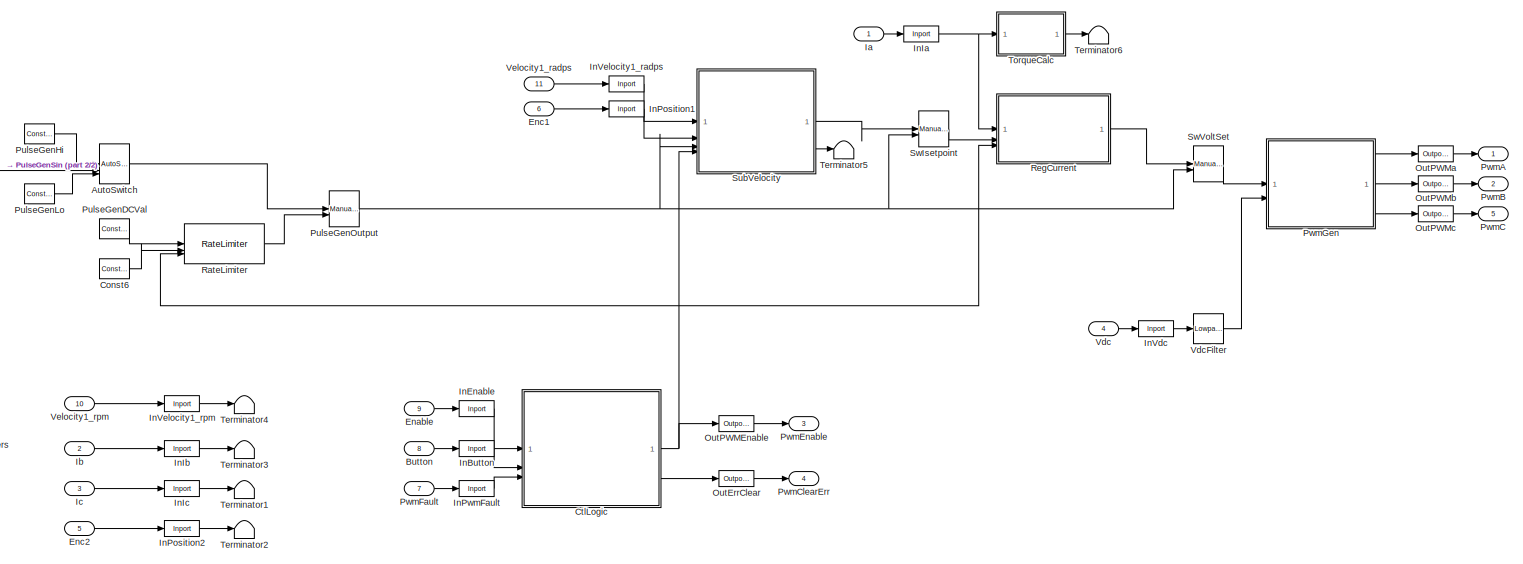
[diagram: root canvas - part 1/2, most of the canvas]
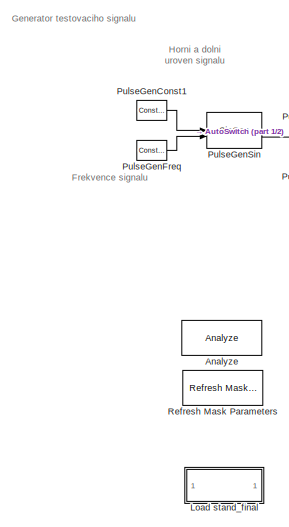
[diagram: root canvas - part 2/2, left side, full height]
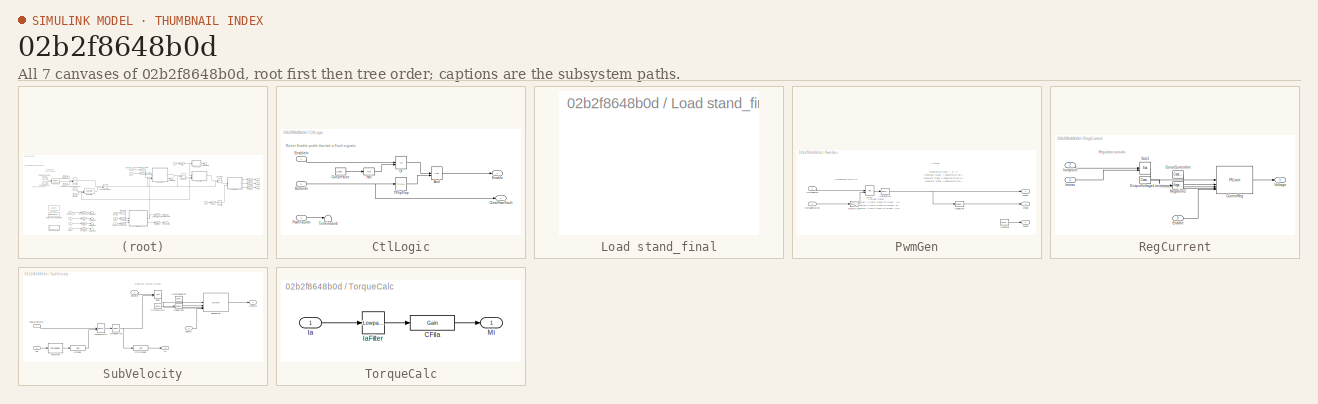
[diagram: thumbnail index - all 7 canvases of the model, root first then tree order]
MODEL slx_02b2f8648b0d
KIND model
CONFIG AbsTol = auto
CONFIG EnableMultiTasking = on
CONFIG FixedStep = auto
CONFIG MaxStep = auto
CONFIG MinStep = auto
CONFIG RelTol = 1e-3
CONFIG SampleTimeConstraint = Unconstrained
CONFIG SolverName = ode45
CONFIG StartTime = 0.0
CONFIG StopTime = 10.0
BLOCK [Reference] Analyze  REF=Basic/Analyze
  SourceBlock = Basic/Analyze
  SourceProductName = X2C Basic
  SourceType = X2C System Block
BLOCK [Reference] AutoSwitch  REF=General/AutoSwitch
  SourceBlock = General/AutoSwitch
  SourceProductName = X2C General
  SourceType = X2C - AutoSwitch
BLOCK [Inport] Button
  Port = 8
BLOCK [Reference] Const6  REF=General/Constant
  SourceBlock = General/Constant
  SourceProductName = X2C General
  SourceType = X2C - Constant
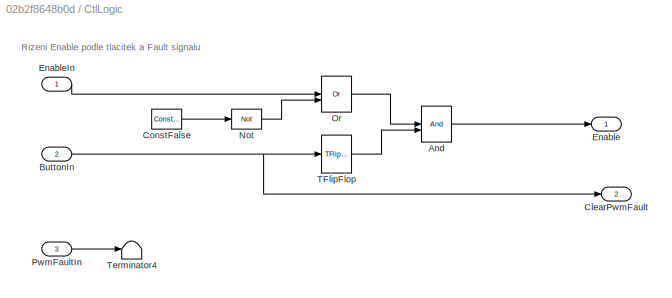
BLOCK [SubSystem] CtlLogic
BLOCK [Reference] CtlLogic/And  REF=General/And
  SourceBlock = General/And
  SourceProductName = X2C General
  SourceType = X2C - And
BLOCK [Inport] CtlLogic/ButtonIn
  Port = 2
BLOCK [Outport] CtlLogic/ClearPwmFault
  Port = 2
BLOCK [Reference] CtlLogic/ConstFalse  REF=General/Constant
  SourceBlock = General/Constant
  SourceProductName = X2C General
  SourceType = X2C - Constant
BLOCK [Outport] CtlLogic/Enable
BLOCK [Inport] CtlLogic/EnableIn
BLOCK [Reference] CtlLogic/Not  REF=General/Not
  SourceBlock = General/Not
  SourceProductName = X2C General
  SourceType = X2C - Not
BLOCK [Reference] CtlLogic/Or  REF=General/Or
  SourceBlock = General/Or
  SourceProductName = X2C General
  SourceType = X2C - Or
BLOCK [Inport] CtlLogic/PwmFaultIn
  Port = 3
BLOCK [Reference] CtlLogic/TFlipFlop  REF=StateControl/TFlipFlop
  SourceBlock = StateControl/TFlipFlop
  SourceProductName = X2C StateControl
  SourceType = X2C - TFlipFlop
BLOCK [Terminator] CtlLogic/Terminator4
BLOCK [Inport] Enable
  Port = 9
BLOCK [Inport] Enc1
  Port = 6
BLOCK [Inport] Enc2
  Port = 5
BLOCK [Inport] Ia
BLOCK [Inport] Ib
  Port = 2
BLOCK [Inport] Ic
  Port = 3
BLOCK [Reference] InButton  REF=General/Inport
  SourceBlock = General/Inport
  SourceProductName = X2C General
  SourceType = X2C - Inport
BLOCK [Reference] InEnable  REF=General/Inport
  SourceBlock = General/Inport
  SourceProductName = X2C General
  SourceType = X2C - Inport
BLOCK [Reference] InIa  REF=General/Inport
  SourceBlock = General/Inport
  SourceProductName = X2C General
  SourceType = X2C - Inport
BLOCK [Reference] InIb  REF=General/Inport
  SourceBlock = General/Inport
  SourceProductName = X2C General
  SourceType = X2C - Inport
BLOCK [Reference] InIc  REF=General/Inport
  SourceBlock = General/Inport
  SourceProductName = X2C General
  SourceType = X2C - Inport
BLOCK [Reference] InPosition1  REF=General/Inport
  SourceBlock = General/Inport
  SourceProductName = X2C General
  SourceType = X2C - Inport
BLOCK [Reference] InPosition2  REF=General/Inport
  SourceBlock = General/Inport
  SourceProductName = X2C General
  SourceType = X2C - Inport
BLOCK [Reference] InPwmFault  REF=General/Inport
  SourceBlock = General/Inport
  SourceProductName = X2C General
  SourceType = X2C - Inport
BLOCK [Reference] InVdc  REF=General/Inport
  SourceBlock = General/Inport
  SourceProductName = X2C General
  SourceType = X2C - Inport
BLOCK [Reference] InVelocity1_radps  REF=General/Inport
  SourceBlock = General/Inport
  SourceProductName = X2C General
  SourceType = X2C - Inport
BLOCK [Reference] InVelocity1_rpm  REF=General/Inport
  SourceBlock = General/Inport
  SourceProductName = X2C General
  SourceType = X2C - Inport
BLOCK [SubSystem] Load stand_final
  InitFcn = stand_final
  OpenFcn = stand_final
BLOCK [Reference] OutErrClear  REF=General/Outport
  SourceBlock = General/Outport
  SourceProductName = X2C General
  SourceType = X2C - Outport
BLOCK [Reference] OutPWMEnable  REF=General/Outport
  SourceBlock = General/Outport
  SourceProductName = X2C General
  SourceType = X2C - Outport
BLOCK [Reference] OutPWMa  REF=General/Outport
  SourceBlock = General/Outport
  SourceProductName = X2C General
  SourceType = X2C - Outport
BLOCK [Reference] OutPWMb  REF=General/Outport
  SourceBlock = General/Outport
  SourceProductName = X2C General
  SourceType = X2C - Outport
BLOCK [Reference] OutPWMc  REF=General/Outport
  SourceBlock = General/Outport
  SourceProductName = X2C General
  SourceType = X2C - Outport
BLOCK [Reference] PulseGenConst1  REF=General/Constant
  SourceBlock = General/Constant
  SourceProductName = X2C General
  SourceType = X2C - Constant
BLOCK [Reference] PulseGenDCVal  REF=General/Constant
  SourceBlock = General/Constant
  SourceProductName = X2C General
  SourceType = X2C - Constant
BLOCK [Reference] PulseGenFreq  REF=General/Constant
  SourceBlock = General/Constant
  SourceProductName = X2C General
  SourceType = X2C - Constant
BLOCK [Reference] PulseGenHi  REF=General/Constant
  SourceBlock = General/Constant
  SourceProductName = X2C General
  SourceType = X2C - Constant
BLOCK [Reference] PulseGenLo  REF=General/Constant
  SourceBlock = General/Constant
  SourceProductName = X2C General
  SourceType = X2C - Constant
BLOCK [Reference] PulseGenOutput  REF=General/ManualSwitch
  SourceBlock = General/ManualSwitch
  SourceProductName = X2C General
  SourceType = X2C - ManualSwitch
BLOCK [Reference] PulseGenSin  REF=General/SinGen
  SourceBlock = General/SinGen
  SourceProductName = X2C General
  SourceType = X2C - SinGen
BLOCK [Outport] PwmA
BLOCK [Outport] PwmB
  Port = 2
BLOCK [Outport] PwmC
  Port = 5
BLOCK [Outport] PwmClearErr
  Port = 4
BLOCK [Outport] PwmEnable
  Port = 3
BLOCK [Inport] PwmFault
  Port = 7
BLOCK [SubSystem] PwmGen
BLOCK [Reference] PwmGen/Constant  REF=General/Constant
  SourceBlock = General/Constant
  SourceProductName = X2C General
  SourceType = X2C - Constant
BLOCK [Reference] PwmGen/Div2  REF=Math/Div
  SourceBlock = Math/Div
  SourceProductName = X2C Math
  SourceType = X2C - Div
BLOCK [Outport] PwmGen/ModA
BLOCK [Outport] PwmGen/ModB
  Port = 2
BLOCK [Outport] PwmGen/ModC
  Port = 3
BLOCK [Reference] PwmGen/Negation  REF=Math/Negation
  SourceBlock = Math/Negation
  SourceProductName = X2C Math
  SourceType = X2C - Negation
BLOCK [Reference] PwmGen/Saturation  REF=General/Saturation
  SourceBlock = General/Saturation
  SourceProductName = X2C General
  SourceType = X2C - Saturation
BLOCK [Reference] PwmGen/Saturation2  REF=General/Saturation
  SourceBlock = General/Saturation
  SourceProductName = X2C General
  SourceType = X2C - Saturation
BLOCK [Inport] PwmGen/VoltageDcLink
  Port = 2
BLOCK [Inport] PwmGen/VoltageSet
BLOCK [Reference] RateLimiter  REF=General/RateLimiter
  SourceBlock = General/RateLimiter
  SourceProductName = X2C General
  SourceType = X2C - RateLimiter
BLOCK [Reference] Refresh Mask Parameters  REF=Basic/Refresh Mask Parameters
  SourceBlock = Basic/Refresh Mask Parameters
  SourceProductName = X2C Basic
  SourceType = X2C System Block
BLOCK [SubSystem] RegCurrent
BLOCK [Reference] RegCurrent/ConstCurrentInit  REF=General/Constant
  SourceBlock = General/Constant
  SourceProductName = X2C General
  SourceType = X2C - Constant
BLOCK [Reference] RegCurrent/CurrentReg  REF=Control/PILimit
  SourceBlock = Control/PILimit
  SourceProductName = X2C Control
  SourceType = X2C - PILimit
BLOCK [Inport] RegCurrent/Enable
  Port = 3
BLOCK [Inport] RegCurrent/Imeas
BLOCK [Inport] RegCurrent/Isetpoint
  Port = 2
BLOCK [Reference] RegCurrent/Negation2  REF=Math/Negation
  SourceBlock = Math/Negation
  SourceProductName = X2C Math
  SourceType = X2C - Negation
BLOCK [Reference] RegCurrent/OutputVoltageLimit  REF=General/Constant
  SourceBlock = General/Constant
  SourceProductName = X2C General
  SourceType = X2C - Constant
BLOCK [Reference] RegCurrent/Sub1  REF=Math/Sub
  SourceBlock = Math/Sub
  SourceProductName = X2C Math
  SourceType = X2C - Sub
BLOCK [Outport] RegCurrent/Voltage
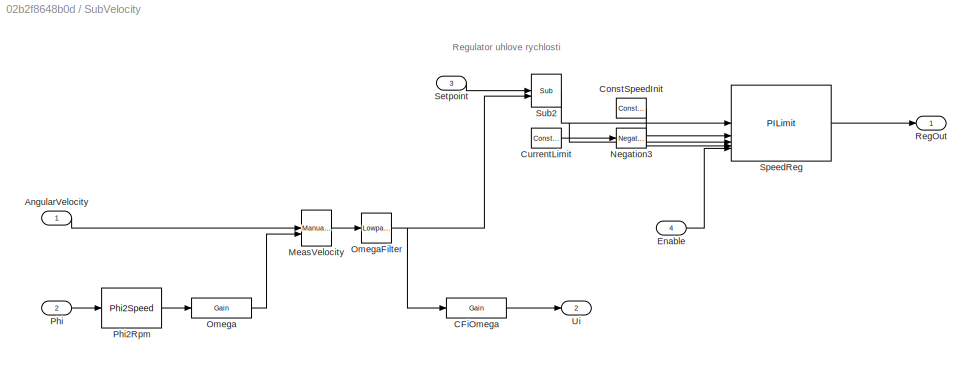
BLOCK [SubSystem] SubVelocity
BLOCK [Inport] SubVelocity/AngularVelocity
BLOCK [Reference] SubVelocity/CFiOmega  REF=General/Gain
  SourceBlock = General/Gain
  SourceProductName = X2C General
  SourceType = X2C - Gain
BLOCK [Reference] SubVelocity/ConstSpeedInit  REF=General/Constant
  SourceBlock = General/Constant
  SourceProductName = X2C General
  SourceType = X2C - Constant
BLOCK [Reference] SubVelocity/CurrentLimit  REF=General/Constant
  SourceBlock = General/Constant
  SourceProductName = X2C General
  SourceType = X2C - Constant
BLOCK [Inport] SubVelocity/Enable
  NameLocation = top
  Port = 4
BLOCK [Reference] SubVelocity/MeasVelocity  REF=General/ManualSwitch
  SourceBlock = General/ManualSwitch
  SourceProductName = X2C General
  SourceType = X2C - ManualSwitch
BLOCK [Reference] SubVelocity/Negation3  REF=Math/Negation
  SourceBlock = Math/Negation
  SourceProductName = X2C Math
  SourceType = X2C - Negation
BLOCK [Reference] SubVelocity/Omega  REF=General/Gain
  SourceBlock = General/Gain
  SourceProductName = X2C General
  SourceType = X2C - Gain
BLOCK [Reference] SubVelocity/OmegaFilter  REF=Filter/LowpassBiQ
  SourceBlock = Filter/LowpassBiQ
  SourceProductName = X2C Filter
  SourceType = X2C - LowpassBiQ
BLOCK [Inport] SubVelocity/Phi
  Port = 2
BLOCK [Reference] SubVelocity/Phi2Rpm  REF=MotorControl/Phi2Speed
  SourceBlock = MotorControl/Phi2Speed
  SourceProductName = X2C MotorControl
  SourceType = X2C - Phi2Speed
BLOCK [Outport] SubVelocity/RegOut
BLOCK [Inport] SubVelocity/Setpoint
  NameLocation = top
  Port = 3
BLOCK [Reference] SubVelocity/SpeedReg  REF=Control/PILimit
  SourceBlock = Control/PILimit
  SourceProductName = X2C Control
  SourceType = X2C - PILimit
BLOCK [Reference] SubVelocity/Sub2  REF=Math/Sub
  SourceBlock = Math/Sub
  SourceProductName = X2C Math
  SourceType = X2C - Sub
BLOCK [Outport] SubVelocity/Ui
  Port = 2
BLOCK [Reference] SwIsetpoint  REF=General/ManualSwitch
  SourceBlock = General/ManualSwitch
  SourceProductName = X2C General
  SourceType = X2C - ManualSwitch
BLOCK [Reference] SwVoltSet  REF=General/ManualSwitch
  SourceBlock = General/ManualSwitch
  SourceProductName = X2C General
  SourceType = X2C - ManualSwitch
BLOCK [Terminator] Terminator1
BLOCK [Terminator] Terminator2
BLOCK [Terminator] Terminator3
BLOCK [Terminator] Terminator4
BLOCK [Terminator] Terminator5
BLOCK [Terminator] Terminator6
BLOCK [SubSystem] TorqueCalc
BLOCK [Reference] TorqueCalc/CFiIa  REF=General/Gain
  SourceBlock = General/Gain
  SourceProductName = X2C General
  SourceType = X2C - Gain
BLOCK [Inport] TorqueCalc/Ia
BLOCK [Reference] TorqueCalc/IaFilter  REF=Filter/LowpassBiQ
  SourceBlock = Filter/LowpassBiQ
  SourceProductName = X2C Filter
  SourceType = X2C - LowpassBiQ
BLOCK [Outport] TorqueCalc/Mi
BLOCK [Inport] Vdc
  Port = 4
BLOCK [Reference] VdcFilter  REF=Filter/LowpassBiQ
  SourceBlock = Filter/LowpassBiQ
  SourceProductName = X2C Filter
  SourceType = X2C - LowpassBiQ
BLOCK [Inport] Velocity1_radps
  Port = 11
BLOCK [Inport] Velocity1_rpm
  Port = 10
ANNOTATION (root): Frekvence signalu
ANNOTATION (root): Generator testovaciho signalu
ANNOTATION (root): Horni a dolni uroven signalu
ANNOTATION CtlLogic: Rizeni Enable podle tlacitek a Fault signalu
ANNOTATION PwmGen: Vystupni signal: pri modulaci -1 motor "citi" -Ud pri modulaci 0 motor "citi" 0V pri modulaci 1 motor "citi" +Ud
ANNOTATION PwmGen: Kompenzace zmen Ud
ANNOTATION PwmGen: Modulace pro faze A, B, C modulacni signal -1 odpovida stride 0 modulacni signal 0 odpovida stride 0.5 modulacni signal 1 odpovida stride 1
ANNOTATION PwmGen: Vystupy
ANNOTATION RegCurrent: Regulator proudu
ANNOTATION SubVelocity: Regulator uhlove rychlosti
LINE AutoSwitch:1 -> PulseGenOutput:1
LINE Button:1 -> InButton:1
LINE Const6:1 -> RateLimiter:2
LINE CtlLogic/And:1 -> CtlLogic/Enable:1
NET CtlLogic/ButtonIn:1 -> CtlLogic/ClearPwmFault:1, CtlLogic/TFlipFlop:1
LINE CtlLogic/ConstFalse:1 -> CtlLogic/Not:1
LINE CtlLogic/EnableIn:1 -> CtlLogic/Or:1
LINE CtlLogic/Not:1 -> CtlLogic/Or:2
LINE CtlLogic/Or:1 -> CtlLogic/And:1
LINE CtlLogic/PwmFaultIn:1 -> CtlLogic/Terminator4:1
LINE CtlLogic/TFlipFlop:1 -> CtlLogic/And:2
NET CtlLogic:1 -> OutPWMEnable:1, RateLimiter:3, RegCurrent:3, SubVelocity:4
LINE CtlLogic:2 -> OutErrClear:1
LINE Enable:1 -> InEnable:1
LINE Enc1:1 -> InPosition1:1
LINE Enc2:1 -> InPosition2:1
LINE Ia:1 -> InIa:1
LINE Ib:1 -> InIb:1
LINE Ic:1 -> InIc:1
LINE InButton:1 -> CtlLogic:2
LINE InEnable:1 -> CtlLogic:1
NET InIa:1 -> RegCurrent:1, TorqueCalc:1
LINE InIb:1 -> Terminator3:1
LINE InIc:1 -> Terminator1:1
LINE InPosition1:1 -> SubVelocity:2
LINE InPosition2:1 -> Terminator2:1
LINE InPwmFault:1 -> CtlLogic:3
LINE InVdc:1 -> VdcFilter:1
LINE InVelocity1_radps:1 -> SubVelocity:1
LINE InVelocity1_rpm:1 -> Terminator4:1
LINE OutErrClear:1 -> PwmClearErr:1
LINE OutPWMEnable:1 -> PwmEnable:1
LINE OutPWMa:1 -> PwmA:1
LINE OutPWMb:1 -> PwmB:1
LINE OutPWMc:1 -> PwmC:1
LINE PulseGenConst1:1 -> PulseGenSin:1
LINE PulseGenDCVal:1 -> RateLimiter:1
LINE PulseGenFreq:1 -> PulseGenSin:2
LINE PulseGenHi:1 -> AutoSwitch:1
LINE PulseGenLo:1 -> AutoSwitch:3
NET PulseGenOutput:1 -> SubVelocity:3, SwIsetpoint:2, SwVoltSet:2
LINE PulseGenSin:1 -> AutoSwitch:2
LINE PwmFault:1 -> InPwmFault:1
LINE PwmGen/Constant:1 -> PwmGen/ModC:1
LINE PwmGen/Div2:1 -> PwmGen/Saturation:1
LINE PwmGen/Negation:1 -> PwmGen/ModB:1
LINE PwmGen/Saturation2:1 -> PwmGen/Div2:2
NET PwmGen/Saturation:1 -> PwmGen/ModA:1, PwmGen/Negation:1
LINE PwmGen/VoltageDcLink:1 -> PwmGen/Saturation2:1
LINE PwmGen/VoltageSet:1 -> PwmGen/Div2:1
LINE PwmGen:1 -> OutPWMa:1
LINE PwmGen:2 -> OutPWMb:1
LINE PwmGen:3 -> OutPWMc:1
LINE RateLimiter:1 -> PulseGenOutput:2
LINE RegCurrent/ConstCurrentInit:1 -> RegCurrent/CurrentReg:2
LINE RegCurrent/CurrentReg:1 -> RegCurrent/Voltage:1
LINE RegCurrent/Enable:1 -> RegCurrent/CurrentReg:5
LINE RegCurrent/Imeas:1 -> RegCurrent/Sub1:2
LINE RegCurrent/Isetpoint:1 -> RegCurrent/Sub1:1
LINE RegCurrent/Negation2:1 -> RegCurrent/CurrentReg:4
NET RegCurrent/OutputVoltageLimit:1 -> RegCurrent/CurrentReg:3, RegCurrent/Negation2:1
LINE RegCurrent/Sub1:1 -> RegCurrent/CurrentReg:1
LINE RegCurrent:1 -> SwVoltSet:1
LINE SubVelocity/AngularVelocity:1 -> SubVelocity/MeasVelocity:1
LINE SubVelocity/CFiOmega:1 -> SubVelocity/Ui:1
LINE SubVelocity/ConstSpeedInit:1 -> SubVelocity/SpeedReg:2
NET SubVelocity/CurrentLimit:1 -> SubVelocity/Negation3:1, SubVelocity/SpeedReg:3
LINE SubVelocity/Enable:1 -> SubVelocity/SpeedReg:5
LINE SubVelocity/MeasVelocity:1 -> SubVelocity/OmegaFilter:1
LINE SubVelocity/Negation3:1 -> SubVelocity/SpeedReg:4
LINE SubVelocity/Omega:1 -> SubVelocity/MeasVelocity:2
NET SubVelocity/OmegaFilter:1 -> SubVelocity/CFiOmega:1, SubVelocity/Sub2:2
LINE SubVelocity/Phi2Rpm:1 -> SubVelocity/Omega:1
LINE SubVelocity/Phi:1 -> SubVelocity/Phi2Rpm:1
LINE SubVelocity/Setpoint:1 -> SubVelocity/Sub2:1
LINE SubVelocity/SpeedReg:1 -> SubVelocity/RegOut:1
LINE SubVelocity/Sub2:1 -> SubVelocity/SpeedReg:1
LINE SubVelocity:1 -> SwIsetpoint:1
LINE SubVelocity:2 -> Terminator5:1
LINE SwIsetpoint:1 -> RegCurrent:2
LINE SwVoltSet:1 -> PwmGen:1
LINE TorqueCalc/CFiIa:1 -> TorqueCalc/Mi:1
LINE TorqueCalc/Ia:1 -> TorqueCalc/IaFilter:1
LINE TorqueCalc/IaFilter:1 -> TorqueCalc/CFiIa:1
LINE TorqueCalc:1 -> Terminator6:1
LINE Vdc:1 -> InVdc:1
LINE VdcFilter:1 -> PwmGen:2
LINE Velocity1_radps:1 -> InVelocity1_radps:1
LINE Velocity1_rpm:1 -> InVelocity1_rpm:1
note: NET lines group one-source signal fan-out (src -> all destinations, sorted); 1:1 wires keep LINE
